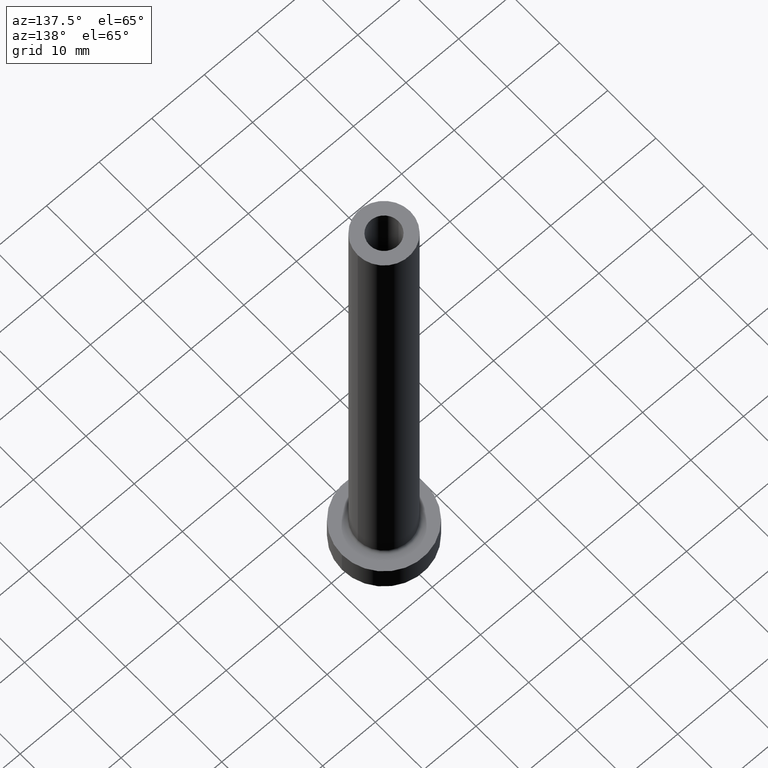
[diagram: clean part render]
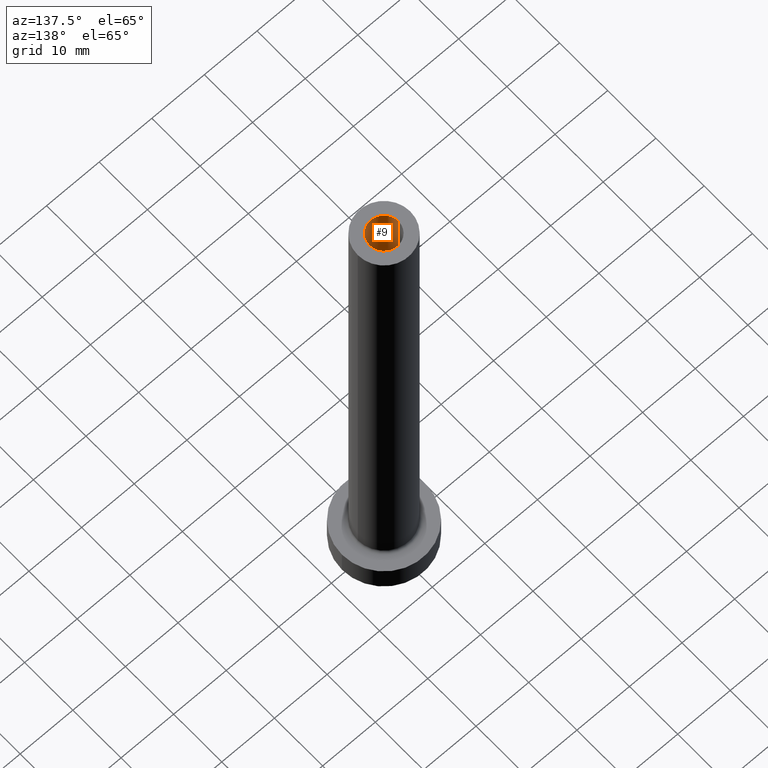
[diagram: same view with one face highlighted and labeled with its STEP entity id]
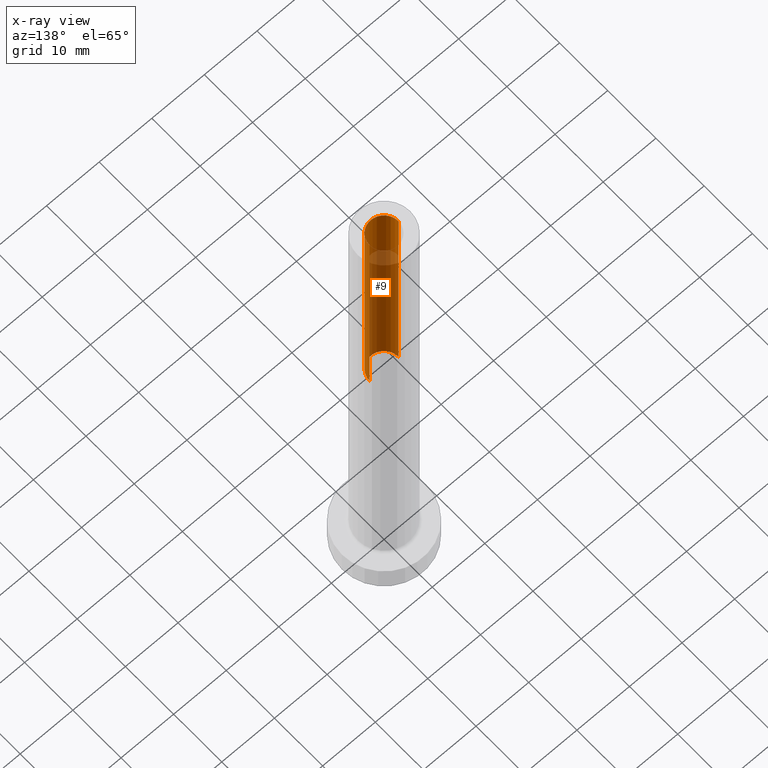
[diagram: x-ray of the same camera — body ghosted, the highlighted face saturated]
A machine part, auxiliary view. The second image highlights one B-rep face of the part: STEP entity #9.
The next image is the same camera in x-ray: the body ghosted, the highlighted face saturated — about 62% of this face is hidden behind the body in this view.
In plain terms, the highlighted cylindrical surface (edge-blend (fillet) strip) has radius 2.75 mm, axis along (0, 0, -1).
Its self-contained STEP definition (entity closure, byte-faithful):
#5 = DIRECTION ( 'NONE',  ( 0.000000000000000000, 0.000000000000000000, -1.000000000000000000 ) ) ;
#9 = ADVANCED_FACE ( 'NONE', ( #162 ), #310, .F. ) ;
#32 = DIRECTION ( 'NONE',  ( 0.000000000000000000, 0.000000000000000000, -1.000000000000000000 ) ) ;
#34 = CIRCLE ( 'NONE', #71, 2.750000000000000000 ) ;
#47 = CARTESIAN_POINT ( 'NONE',  ( 0.000000000000000000, 0.000000000000000000, 100.0000000000000000 ) ) ;
#52 = LINE ( 'NONE', #177, #80 ) ;
#66 = ORIENTED_EDGE ( 'NONE', *, *, #433, .F. ) ;
#71 = AXIS2_PLACEMENT_3D ( 'NONE', #240, #134, #283 ) ;
#80 = VECTOR ( 'NONE', #5, 1000.000000000000000 ) ;
#131 = DIRECTION ( 'NONE',  ( 0.000000000000000000, 0.000000000000000000, -1.000000000000000000 ) ) ;
#132 = CARTESIAN_POINT ( 'NONE',  ( -2.750000000000000000, 0.000000000000000000, 55.00000000000000711 ) ) ;
#134 = DIRECTION ( 'NONE',  ( 0.000000000000000000, 0.000000000000000000, 1.000000000000000000 ) ) ;
#135 = AXIS2_PLACEMENT_3D ( 'NONE', #47, #335, #145 ) ;
#144 = EDGE_CURVE ( 'NONE', #183, #404, #414, .T. ) ;
#145 = DIRECTION ( 'NONE',  ( 1.000000000000000000, 0.000000000000000000, 0.000000000000000000 ) ) ;
#162 = FACE_OUTER_BOUND ( 'NONE', #355, .T. ) ;
#173 = CARTESIAN_POINT ( 'NONE',  ( 2.750000000000000000, 3.367778697655220519E-16, 100.0000000000000000 ) ) ;
#177 = CARTESIAN_POINT ( 'NONE',  ( 2.750000000000000000, 3.367778697655220519E-16, 100.0000000000000000 ) ) ;
#183 = VERTEX_POINT ( 'NONE', #282 ) ;
#212 = CARTESIAN_POINT ( 'NONE',  ( 2.750000000000000000, 3.367778697655220519E-16, 55.00000000000000711 ) ) ;
#235 = VERTEX_POINT ( 'NONE', #173 ) ;
#240 = CARTESIAN_POINT ( 'NONE',  ( 0.000000000000000000, 0.000000000000000000, 55.00000000000000711 ) ) ;
#282 = CARTESIAN_POINT ( 'NONE',  ( -2.750000000000000000, 0.000000000000000000, 100.0000000000000000 ) ) ;
#283 = DIRECTION ( 'NONE',  ( 1.000000000000000000, 0.000000000000000000, 0.000000000000000000 ) ) ;
#300 = CIRCLE ( 'NONE', #135, 2.750000000000000000 ) ;
#303 = ORIENTED_EDGE ( 'NONE', *, *, #350, .T. ) ;
#306 = VERTEX_POINT ( 'NONE', #212 ) ;
#310 = CYLINDRICAL_SURFACE ( 'NONE', #382, 2.750000000000000000 ) ;
#315 = CARTESIAN_POINT ( 'NONE',  ( -2.750000000000000000, 0.000000000000000000, 100.0000000000000000 ) ) ;
#335 = DIRECTION ( 'NONE',  ( 0.000000000000000000, 0.000000000000000000, 1.000000000000000000 ) ) ;
#346 = EDGE_CURVE ( 'NONE', #235, #306, #52, .T. ) ;
#350 = EDGE_CURVE ( 'NONE', #183, #235, #300, .T. ) ;
#355 = EDGE_LOOP ( 'NONE', ( #303, #427, #66, #452 ) ) ;
#371 = VECTOR ( 'NONE', #32, 1000.000000000000000 ) ;
#382 = AXIS2_PLACEMENT_3D ( 'NONE', #446, #131, #422 ) ;
#404 = VERTEX_POINT ( 'NONE', #132 ) ;
#414 = LINE ( 'NONE', #315, #371 ) ;
#422 = DIRECTION ( 'NONE',  ( -1.000000000000000000, 0.000000000000000000, 0.000000000000000000 ) ) ;
#427 = ORIENTED_EDGE ( 'NONE', *, *, #346, .T. ) ;
#433 = EDGE_CURVE ( 'NONE', #404, #306, #34, .T. ) ;
#446 = CARTESIAN_POINT ( 'NONE',  ( 0.000000000000000000, 0.000000000000000000, 100.0000000000000000 ) ) ;
#452 = ORIENTED_EDGE ( 'NONE', *, *, #144, .F. ) ;